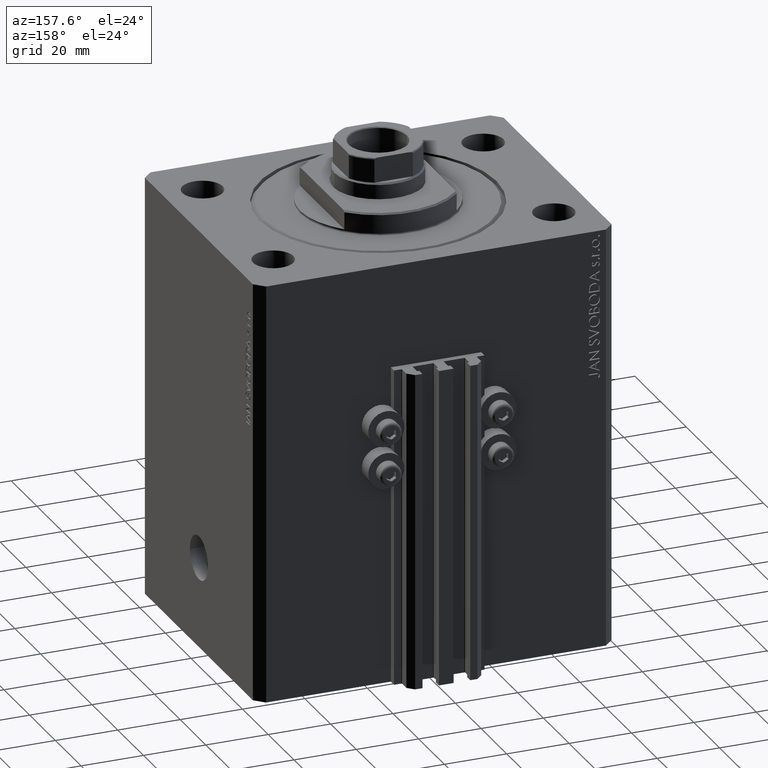
[diagram: clean part render]
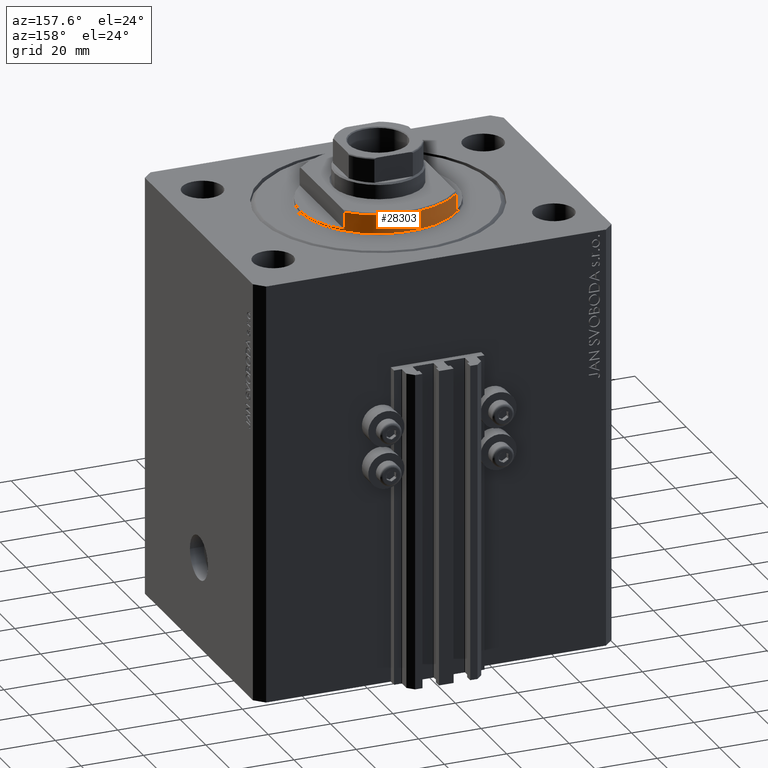
[diagram: same view with one face highlighted and labeled with its STEP entity id]
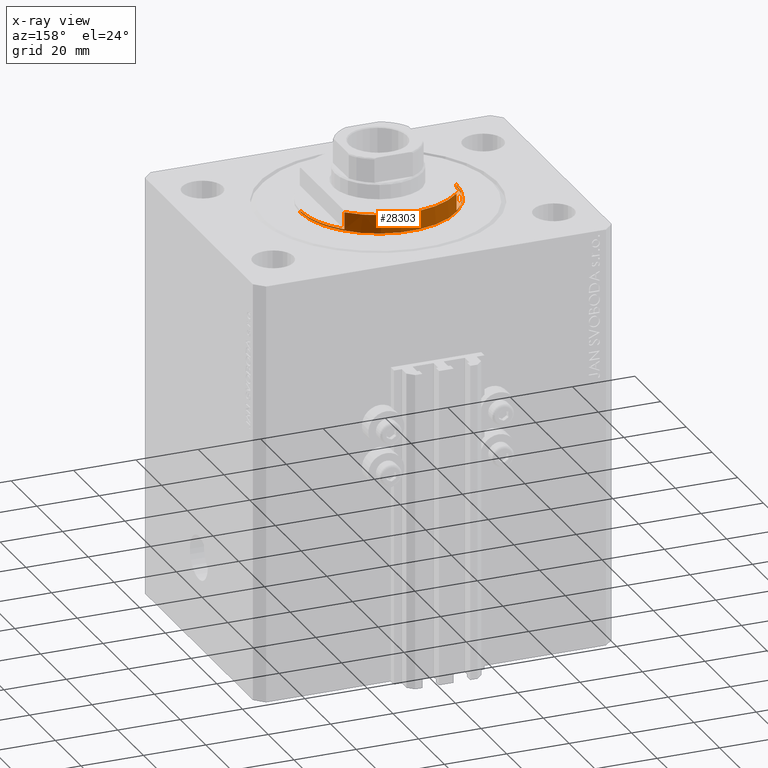
[diagram: x-ray of the same camera — body ghosted, the highlighted face saturated]
A machine part, auxiliary view. The second image highlights one B-rep face of the part: STEP entity #28303.
The next image is the same camera in x-ray: the body ghosted, the highlighted face saturated — about 0% of this face is hidden behind the body in this view.
In plain terms, the highlighted cylindrical surface (partial cylindrical patch) has radius 25 mm, axis along (0, 0, -1).
Its self-contained STEP definition (entity closure, byte-faithful):
#318 = EDGE_CURVE ( 'NONE', #18725, #31949, #14146, .T. ) ;
#1665 = CYLINDRICAL_SURFACE ( 'NONE', #25969, 25.00000000000000000 ) ;
#2287 = CARTESIAN_POINT ( 'NONE',  ( -18.00000000000000000, 17.34935157289747920, -1.000000000000000000 ) ) ;
#2773 = CARTESIAN_POINT ( 'NONE',  ( -25.00000000000000000, 3.061616997868383043E-15, -0.4999999999999995559 ) ) ;
#3222 = DIRECTION ( 'NONE',  ( 0.000000000000000000, 0.000000000000000000, -1.000000000000000000 ) ) ;
#4269 = AXIS2_PLACEMENT_3D ( 'NONE', #19114, #8328, #45148 ) ;
#4620 = VERTEX_POINT ( 'NONE', #31888 ) ;
#5196 = CARTESIAN_POINT ( 'NONE',  ( 0.000000000000000000, 0.000000000000000000, -6.499999999999971578 ) ) ;
#6123 = ORIENTED_EDGE ( 'NONE', *, *, #40601, .T. ) ;
#6411 = VECTOR ( 'NONE', #14171, 1000.000000000000000 ) ;
#6610 = DIRECTION ( 'NONE',  ( -1.000000000000000000, 0.000000000000000000, 0.000000000000000000 ) ) ;
#6613 = VERTEX_POINT ( 'NONE', #26200 ) ;
#7162 = AXIS2_PLACEMENT_3D ( 'NONE', #5196, #9282, #31269 ) ;
#8328 = DIRECTION ( 'NONE',  ( 0.000000000000000000, 0.000000000000000000, -1.000000000000000000 ) ) ;
#9282 = DIRECTION ( 'NONE',  ( 0.000000000000000000, 0.000000000000000000, 1.000000000000000000 ) ) ;
#9296 = DIRECTION ( 'NONE',  ( -0.000000000000000000, -0.000000000000000000, 1.000000000000000000 ) ) ;
#10698 = VERTEX_POINT ( 'NONE', #17136 ) ;
#11580 = EDGE_CURVE ( 'NONE', #4620, #31949, #30729, .T. ) ;
#12922 = VECTOR ( 'NONE', #28486, 1000.000000000000000 ) ;
#13049 = LINE ( 'NONE', #45805, #43144 ) ;
#14146 = LINE ( 'NONE', #40210, #12922 ) ;
#14171 = DIRECTION ( 'NONE',  ( -0.000000000000000000, -0.000000000000000000, 1.000000000000000000 ) ) ;
#16049 = AXIS2_PLACEMENT_3D ( 'NONE', #46406, #24639, #27977 ) ;
#16476 = ORIENTED_EDGE ( 'NONE', *, *, #41281, .T. ) ;
#16482 = CARTESIAN_POINT ( 'NONE',  ( 25.00000000000000000, 0.000000000000000000, -0.4999999999999995559 ) ) ;
#17136 = CARTESIAN_POINT ( 'NONE',  ( 18.00000000000000000, 17.34935157289747920, -1.000000000000000000 ) ) ;
#17438 = ORIENTED_EDGE ( 'NONE', *, *, #19951, .F. ) ;
#17764 = LINE ( 'NONE', #20631, #6411 ) ;
#18725 = VERTEX_POINT ( 'NONE', #46944 ) ;
#19114 = CARTESIAN_POINT ( 'NONE',  ( 0.000000000000000000, 0.000000000000000000, -1.000000000000000000 ) ) ;
#19951 = EDGE_CURVE ( 'NONE', #33753, #10698, #44710, .T. ) ;
#20287 = EDGE_LOOP ( 'NONE', ( #28368, #16476, #32423, #20934, #45606, #17438, #6123, #28173 ) ) ;
#20631 = CARTESIAN_POINT ( 'NONE',  ( -25.00000000000000000, 3.061616997868383043E-15, -7.000000000000000000 ) ) ;
#20745 = VERTEX_POINT ( 'NONE', #2773 ) ;
#20934 = ORIENTED_EDGE ( 'NONE', *, *, #27605, .F. ) ;
#21185 = DIRECTION ( 'NONE',  ( -0.000000000000000000, -0.000000000000000000, 1.000000000000000000 ) ) ;
#21916 = EDGE_CURVE ( 'NONE', #10698, #6613, #24898, .T. ) ;
#23219 = CIRCLE ( 'NONE', #7162, 25.00000000000000000 ) ;
#23840 = AXIS2_PLACEMENT_3D ( 'NONE', #47261, #3222, #6610 ) ;
#24639 = DIRECTION ( 'NONE',  ( -0.000000000000000000, -0.000000000000000000, -1.000000000000000000 ) ) ;
#24898 = CIRCLE ( 'NONE', #4269, 25.00000000000000000 ) ;
#25969 = AXIS2_PLACEMENT_3D ( 'NONE', #45469, #28456, #46887 ) ;
#26200 = CARTESIAN_POINT ( 'NONE',  ( 25.00000000000000000, 0.000000000000000000, -1.000000000000000000 ) ) ;
#27275 = CARTESIAN_POINT ( 'NONE',  ( 18.00000000000000000, 17.34935157289748986, -6.499999999999978684 ) ) ;
#27605 = EDGE_CURVE ( 'NONE', #6613, #28554, #13049, .T. ) ;
#27977 = DIRECTION ( 'NONE',  ( 1.000000000000000000, 0.000000000000000000, 0.000000000000000000 ) ) ;
#28164 = EDGE_CURVE ( 'NONE', #20745, #28554, #42023, .T. ) ;
#28173 = ORIENTED_EDGE ( 'NONE', *, *, #318, .T. ) ;
#28303 = ADVANCED_FACE ( 'NONE', ( #38761 ), #1665, .T. ) ;
#28368 = ORIENTED_EDGE ( 'NONE', *, *, #11580, .F. ) ;
#28456 = DIRECTION ( 'NONE',  ( -0.000000000000000000, -0.000000000000000000, 1.000000000000000000 ) ) ;
#28486 = DIRECTION ( 'NONE',  ( -0.000000000000000000, -0.000000000000000000, 1.000000000000000000 ) ) ;
#28554 = VERTEX_POINT ( 'NONE', #16482 ) ;
#30729 = CIRCLE ( 'NONE', #23840, 25.00000000000000000 ) ;
#31269 = DIRECTION ( 'NONE',  ( -1.000000000000000000, 0.000000000000000000, 0.000000000000000000 ) ) ;
#31888 = CARTESIAN_POINT ( 'NONE',  ( -25.00000000000000000, 3.061616997868383043E-15, -1.000000000000000000 ) ) ;
#31949 = VERTEX_POINT ( 'NONE', #2287 ) ;
#32423 = ORIENTED_EDGE ( 'NONE', *, *, #28164, .T. ) ;
#33753 = VERTEX_POINT ( 'NONE', #27275 ) ;
#38761 = FACE_OUTER_BOUND ( 'NONE', #20287, .T. ) ;
#40103 = VECTOR ( 'NONE', #9296, 1000.000000000000000 ) ;
#40210 = CARTESIAN_POINT ( 'NONE',  ( -18.00000000000000000, 17.34935157289747920, -7.000000000000000000 ) ) ;
#40601 = EDGE_CURVE ( 'NONE', #33753, #18725, #23219, .T. ) ;
#41125 = CARTESIAN_POINT ( 'NONE',  ( 18.00000000000000000, 17.34935157289747920, -7.000000000000000000 ) ) ;
#41281 = EDGE_CURVE ( 'NONE', #4620, #20745, #17764, .T. ) ;
#42023 = CIRCLE ( 'NONE', #16049, 25.00000000000000000 ) ;
#43144 = VECTOR ( 'NONE', #21185, 1000.000000000000000 ) ;
#44710 = LINE ( 'NONE', #41125, #40103 ) ;
#45148 = DIRECTION ( 'NONE',  ( -1.000000000000000000, 0.000000000000000000, 0.000000000000000000 ) ) ;
#45469 = CARTESIAN_POINT ( 'NONE',  ( 0.000000000000000000, 0.000000000000000000, -7.000000000000000000 ) ) ;
#45606 = ORIENTED_EDGE ( 'NONE', *, *, #21916, .F. ) ;
#45805 = CARTESIAN_POINT ( 'NONE',  ( 25.00000000000000000, 0.000000000000000000, -7.000000000000000000 ) ) ;
#46406 = CARTESIAN_POINT ( 'NONE',  ( 0.000000000000000000, 0.000000000000000000, -0.4999999999999995559 ) ) ;
#46887 = DIRECTION ( 'NONE',  ( 1.000000000000000000, 0.000000000000000000, 0.000000000000000000 ) ) ;
#46944 = CARTESIAN_POINT ( 'NONE',  ( -18.00000000000000000, 17.34935157289748986, -6.499999999999978684 ) ) ;
#47261 = CARTESIAN_POINT ( 'NONE',  ( 0.000000000000000000, 0.000000000000000000, -1.000000000000000000 ) ) ;